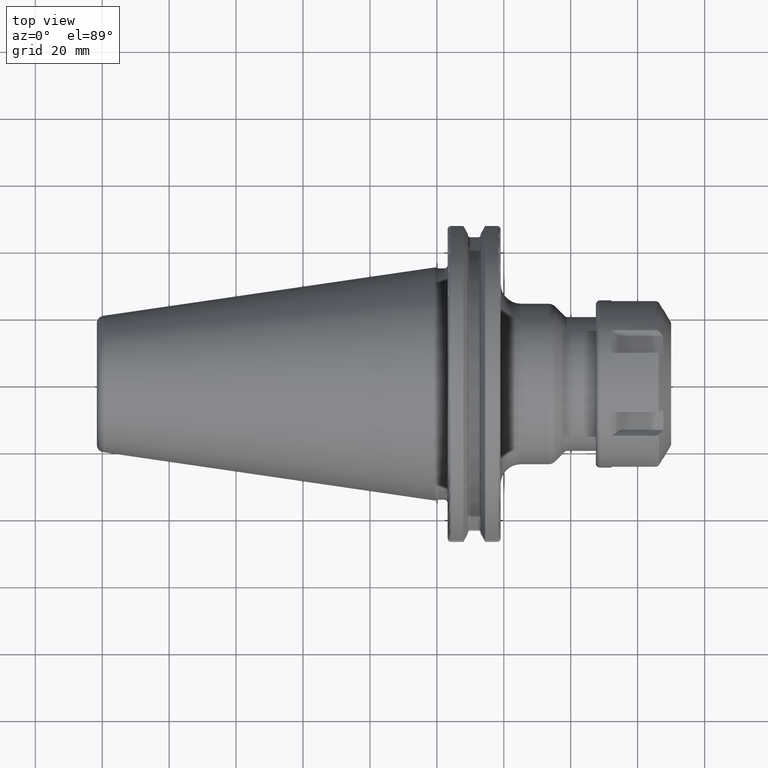
[diagram: clean part render]
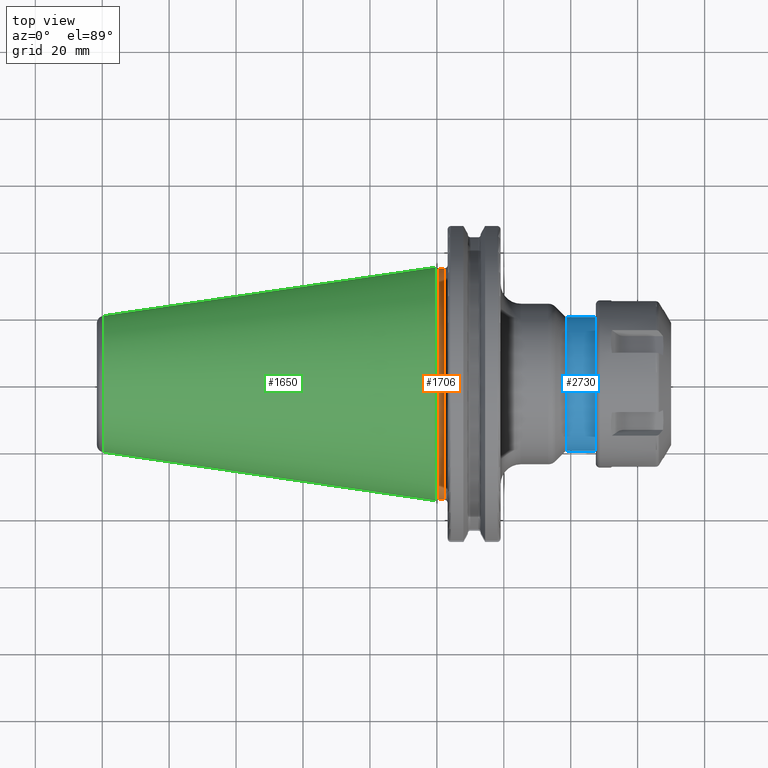
[diagram: same view with three faces highlighted in distinct colors, each labeled with its STEP entity id]
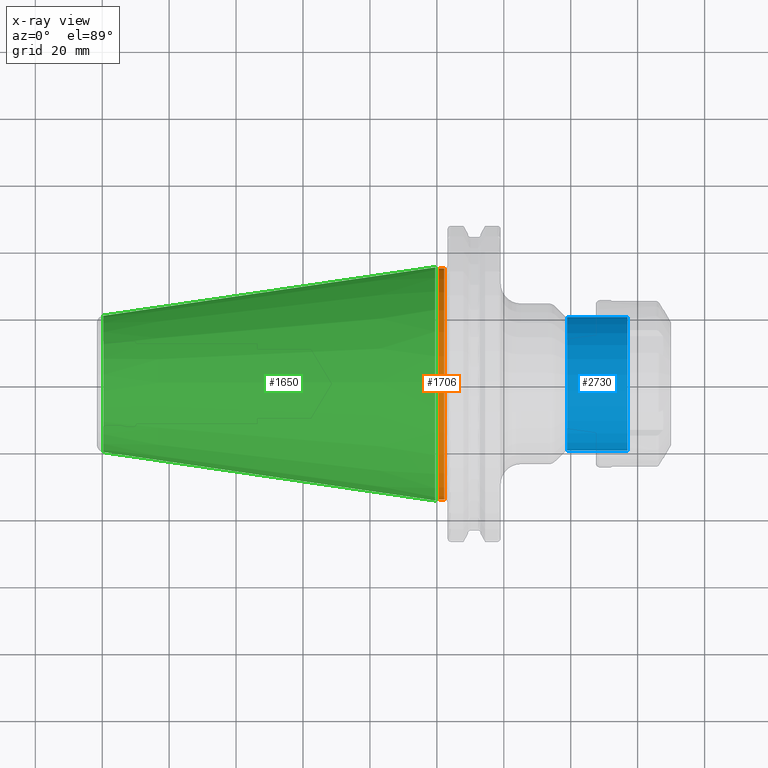
[diagram: x-ray of the same camera — body ghosted, the three highlighted faces saturated]
A machine part, top view with three faces highlighted in distinct colors.
The next image is the same camera in x-ray (body ghosted, the three faces saturated) — at least one of them is partly hidden behind the body in this view.
Their STEP definitions:

[orange] entity #1706 — the highlighted cylindrical surface (partial cylindrical patch) has radius 34.575 mm, axis along (1, 0, 0).
#73=CARTESIAN_POINT('',(5.500000000001E-1,0.E0,0.E0));
#74=DIRECTION('',(1.E0,0.E0,0.E0));
#75=DIRECTION('',(0.E0,1.E0,0.E0));
#76=AXIS2_PLACEMENT_3D('',#73,#74,#75);
#78=CARTESIAN_POINT('',(2.2E0,0.E0,0.E0));
#79=DIRECTION('',(1.E0,0.E0,0.E0));
#80=DIRECTION('',(0.E0,1.E0,0.E0));
#81=AXIS2_PLACEMENT_3D('',#78,#79,#80);
#83=DIRECTION('',(-1.E0,0.E0,0.E0));
#84=VECTOR('',#83,1.65E0);
#85=CARTESIAN_POINT('',(2.2E0,3.4575E1,0.E0));
#86=LINE('',#85,#84);
#87=DIRECTION('',(-1.E0,0.E0,0.E0));
#88=VECTOR('',#87,1.65E0);
#89=CARTESIAN_POINT('',(2.2E0,-3.4575E1,0.E0));
#90=LINE('',#89,#88);
#1326=CARTESIAN_POINT('',(2.2E0,3.4575E1,0.E0));
#1327=CARTESIAN_POINT('',(5.5E-1,3.4575E1,0.E0));
#1328=VERTEX_POINT('',#1326);
#1329=VERTEX_POINT('',#1327);
#1331=CARTESIAN_POINT('',(2.2E0,-3.4575E1,0.E0));
#1333=VERTEX_POINT('',#1331);
#1334=CARTESIAN_POINT('',(5.5E-1,-3.4575E1,0.E0));
#1335=VERTEX_POINT('',#1334);
#1692=CARTESIAN_POINT('',(-1.076325E2,0.E0,0.E0));
#1693=DIRECTION('',(1.E0,0.E0,0.E0));
#1694=DIRECTION('',(0.E0,-1.E0,0.E0));
#1695=AXIS2_PLACEMENT_3D('',#1692,#1693,#1694);
#1696=CYLINDRICAL_SURFACE('',#1695,3.4575E1);
#1698=ORIENTED_EDGE('',*,*,#1697,.F.);
#1700=ORIENTED_EDGE('',*,*,#1699,.T.);
#1702=ORIENTED_EDGE('',*,*,#1701,.T.);
#1703=ORIENTED_EDGE('',*,*,#1685,.F.);
#1704=EDGE_LOOP('',(#1698,#1700,#1702,#1703));
#1705=FACE_OUTER_BOUND('',#1704,.F.);
#1706=ADVANCED_FACE('',(#1705),#1696,.T.);
#77=CIRCLE('',#76,3.4575E1);
#82=CIRCLE('',#81,3.4575E1);
#1685=EDGE_CURVE('',#1329,#1335,#77,.T.);
#1697=EDGE_CURVE('',#1328,#1329,#86,.T.);
#1699=EDGE_CURVE('',#1328,#1333,#82,.T.);
#1701=EDGE_CURVE('',#1333,#1335,#90,.T.);

[blue] entity #2730 — the highlighted cylindrical surface (partial cylindrical patch) has radius 20 mm, axis along (1, 0, 0).
#1043=DIRECTION('',(-1.E0,0.E0,2.950334088485E-14));
#1044=VECTOR('',#1043,1.808578643763E1);
#1045=CARTESIAN_POINT('',(5.7E1,-2.E1,0.E0));
#1046=LINE('',#1045,#1044);
#1052=DIRECTION('',(-1.E0,0.E0,-2.977852314924E-14));
#1053=VECTOR('',#1052,1.808578643763E1);
#1054=CARTESIAN_POINT('',(5.7E1,2.E1,0.E0));
#1055=LINE('',#1054,#1053);
#1056=CARTESIAN_POINT('',(3.891421356237E1,0.E0,0.E0));
#1057=DIRECTION('',(1.E0,0.E0,0.E0));
#1058=DIRECTION('',(0.E0,1.E0,0.E0));
#1059=AXIS2_PLACEMENT_3D('',#1056,#1057,#1058);
#1061=CARTESIAN_POINT('',(5.7E1,0.E0,0.E0));
#1062=DIRECTION('',(1.E0,0.E0,0.E0));
#1063=DIRECTION('',(0.E0,1.E0,0.E0));
#1064=AXIS2_PLACEMENT_3D('',#1061,#1062,#1063);
#1531=CARTESIAN_POINT('',(5.7E1,2.E1,0.E0));
#1532=CARTESIAN_POINT('',(5.7E1,-2.E1,0.E0));
#1533=VERTEX_POINT('',#1531);
#1534=VERTEX_POINT('',#1532);
#1559=CARTESIAN_POINT('',(3.891421356237E1,-2.E1,0.E0));
#1560=CARTESIAN_POINT('',(3.891421356237E1,2.E1,0.E0));
#1561=VERTEX_POINT('',#1559);
#1562=VERTEX_POINT('',#1560);
#2718=CARTESIAN_POINT('',(1.71525E1,0.E0,0.E0));
#2719=DIRECTION('',(1.E0,0.E0,0.E0));
#2720=DIRECTION('',(0.E0,-1.E0,0.E0));
#2721=AXIS2_PLACEMENT_3D('',#2718,#2719,#2720);
#2722=CYLINDRICAL_SURFACE('',#2721,2.E1);
#2723=ORIENTED_EDGE('',*,*,#2683,.F.);
#2724=ORIENTED_EDGE('',*,*,#2713,.F.);
#2726=ORIENTED_EDGE('',*,*,#2725,.T.);
#2727=ORIENTED_EDGE('',*,*,#2709,.T.);
#2728=EDGE_LOOP('',(#2723,#2724,#2726,#2727));
#2729=FACE_OUTER_BOUND('',#2728,.F.);
#2730=ADVANCED_FACE('',(#2729),#2722,.T.);
#1060=CIRCLE('',#1059,2.E1);
#1065=CIRCLE('',#1064,2.E1);
#2683=EDGE_CURVE('',#1562,#1561,#1060,.T.);
#2709=EDGE_CURVE('',#1534,#1561,#1046,.T.);
#2713=EDGE_CURVE('',#1533,#1562,#1055,.T.);
#2725=EDGE_CURVE('',#1533,#1534,#1065,.T.);

[green] entity #1650 — the highlighted conical surface has half-angle 8.298 deg.
#37=CARTESIAN_POINT('',(-9.967471700563E1,0.E0,0.E0));
#38=DIRECTION('',(1.E0,0.E0,0.E0));
#39=DIRECTION('',(0.E0,1.E0,0.E0));
#40=AXIS2_PLACEMENT_3D('',#37,#38,#39);
#42=CARTESIAN_POINT('',(-4.896823332305E-1,0.E0,0.E0));
#43=DIRECTION('',(1.E0,0.E0,0.E0));
#44=DIRECTION('',(0.E0,1.E0,0.E0));
#45=AXIS2_PLACEMENT_3D('',#42,#43,#44);
#47=DIRECTION('',(-9.895312636440E-1,-1.443186691705E-1,0.E0));
#48=VECTOR('',#47,1.002343617797E2);
#49=CARTESIAN_POINT('',(-4.896823332305E-1,3.485358204157E1,0.E0));
#50=LINE('',#49,#48);
#51=DIRECTION('',(-9.895312636440E-1,1.443186691705E-1,0.E0));
#52=VECTOR('',#51,1.002343617797E2);
#53=CARTESIAN_POINT('',(-4.896823332305E-1,-3.485358204157E1,0.E0));
#54=LINE('',#53,#52);
#1318=CARTESIAN_POINT('',(-9.967471700563E1,2.038789234437E1,0.E0));
#1320=VERTEX_POINT('',#1318);
#1322=CARTESIAN_POINT('',(-9.967471700563E1,-2.038789234437E1,0.E0));
#1324=VERTEX_POINT('',#1322);
#1386=CARTESIAN_POINT('',(-4.896823332305E-1,3.485358204157E1,0.E0));
#1387=VERTEX_POINT('',#1386);
#1388=CARTESIAN_POINT('',(-4.896823332305E-1,-3.485358204157E1,0.E0));
#1389=VERTEX_POINT('',#1388);
#1636=CARTESIAN_POINT('',(-5.008219966943E1,0.E0,0.E0));
#1637=DIRECTION('',(1.E0,0.E0,0.E0));
#1638=DIRECTION('',(0.E0,-1.E0,0.E0));
#1639=AXIS2_PLACEMENT_3D('',#1636,#1637,#1638);
#1640=CONICAL_SURFACE('',#1639,2.762073719297E1,8.297826828206E0);
#1642=ORIENTED_EDGE('',*,*,#1641,.F.);
#1644=ORIENTED_EDGE('',*,*,#1643,.T.);
#1646=ORIENTED_EDGE('',*,*,#1645,.T.);
#1647=ORIENTED_EDGE('',*,*,#1629,.F.);
#1648=EDGE_LOOP('',(#1642,#1644,#1646,#1647));
#1649=FACE_OUTER_BOUND('',#1648,.F.);
#1650=ADVANCED_FACE('',(#1649),#1640,.T.);
#41=CIRCLE('',#40,2.038789234437E1);
#46=CIRCLE('',#45,3.485358204157E1);
#1629=EDGE_CURVE('',#1320,#1324,#41,.T.);
#1641=EDGE_CURVE('',#1387,#1320,#50,.T.);
#1643=EDGE_CURVE('',#1387,#1389,#46,.T.);
#1645=EDGE_CURVE('',#1389,#1324,#54,.T.);